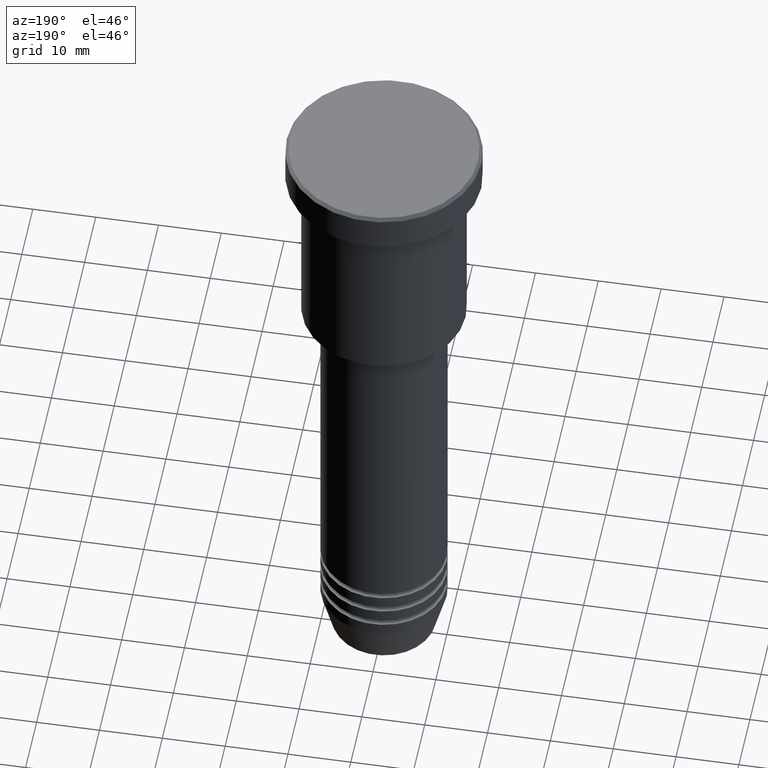
[diagram: clean part render]
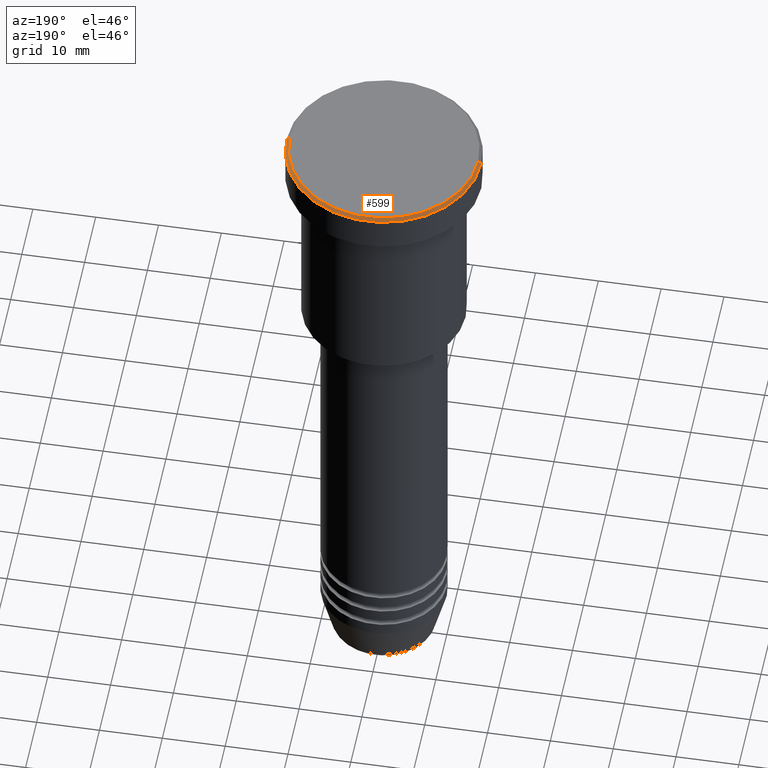
[diagram: same view with one face highlighted and labeled with its STEP entity id]
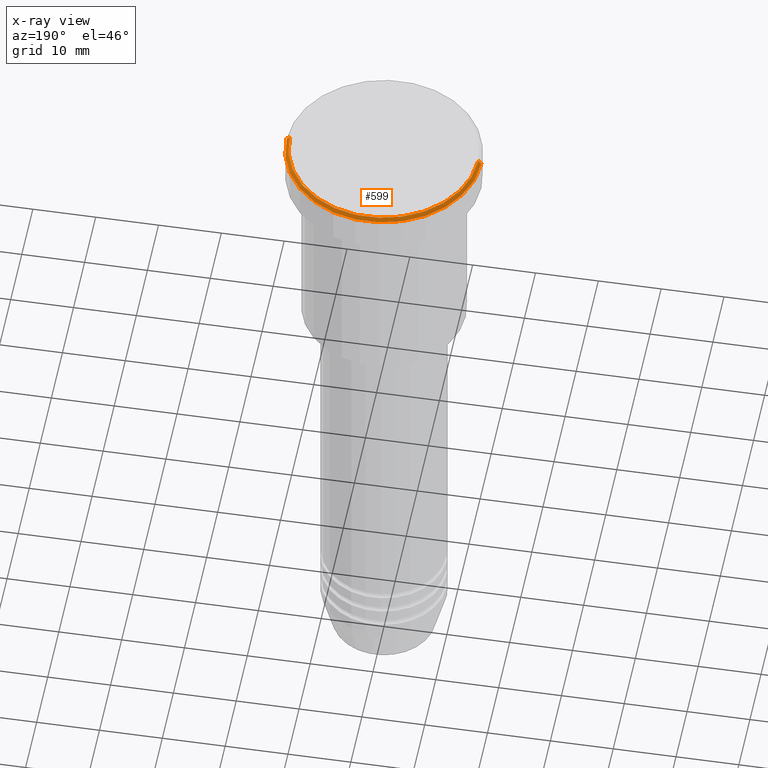
[diagram: x-ray of the same camera — body ghosted, the highlighted face saturated]
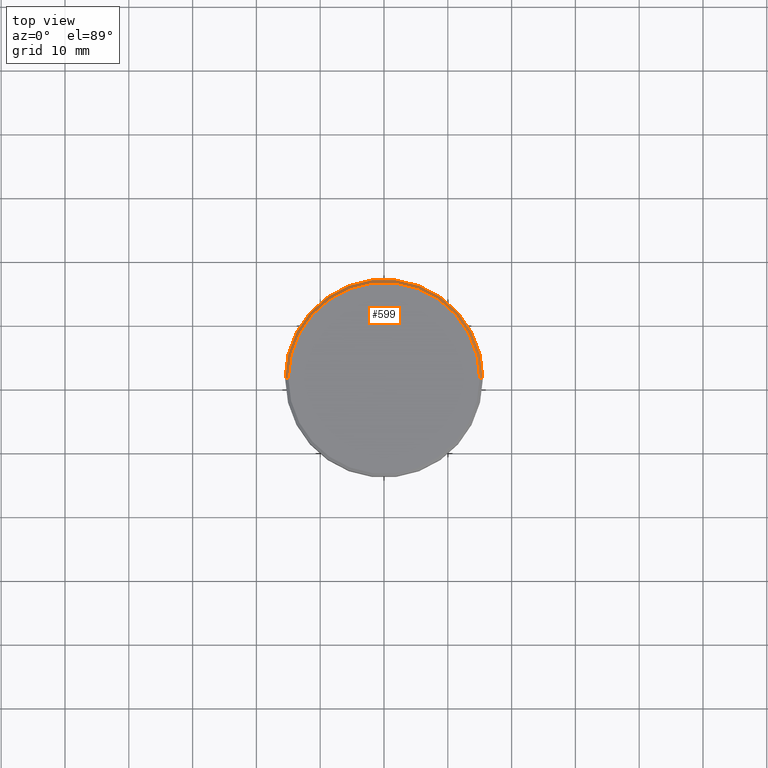
[diagram: same view with one face highlighted and labeled with its STEP entity id]
A machine part, auxiliary view. The second image highlights one B-rep face of the part: STEP entity #599.
The next image is the same camera in x-ray: the body ghosted, the highlighted face saturated — about 0% of this face is hidden behind the body in this view.
A second angle (top view) of the same face is appended — the face is thin or edge-on in the first view.
In plain terms, the highlighted conical surface has half-angle 45 deg.
Its self-contained STEP definition (entity closure, byte-faithful):
#14 = CARTESIAN_POINT ( 'NONE',  ( -15.00000000000000000, 0.000000000000000000, 0.000000000000000000 ) ) ;
#67 = AXIS2_PLACEMENT_3D ( 'NONE', #78, #363, #1008 ) ;
#68 = VERTEX_POINT ( 'NONE', #308 ) ;
#70 = EDGE_LOOP ( 'NONE', ( #425, #884, #898, #730 ) ) ;
#72 = CARTESIAN_POINT ( 'NONE',  ( -15.00000000000000000, 0.000000000000000000, 0.000000000000000000 ) ) ;
#78 = CARTESIAN_POINT ( 'NONE',  ( 0.000000000000000000, 0.000000000000000000, -0.4999999999999987232 ) ) ;
#138 = AXIS2_PLACEMENT_3D ( 'NONE', #1134, #438, #430 ) ;
#141 = CIRCLE ( 'NONE', #278, 15.00000000000000000 ) ;
#278 = AXIS2_PLACEMENT_3D ( 'NONE', #939, #307, #848 ) ;
#307 = DIRECTION ( 'NONE',  ( -0.000000000000000000, -0.000000000000000000, 1.000000000000000000 ) ) ;
#308 = CARTESIAN_POINT ( 'NONE',  ( 15.50000000000000000, 0.000000000000000000, -0.4999999999999987232 ) ) ;
#345 = EDGE_CURVE ( 'NONE', #454, #930, #737, .T. ) ;
#363 = DIRECTION ( 'NONE',  ( 0.000000000000000000, 0.000000000000000000, -1.000000000000000000 ) ) ;
#420 = EDGE_CURVE ( 'NONE', #709, #68, #468, .T. ) ;
#425 = ORIENTED_EDGE ( 'NONE', *, *, #450, .F. ) ;
#430 = DIRECTION ( 'NONE',  ( -1.000000000000000000, 0.000000000000000000, 0.000000000000000000 ) ) ;
#438 = DIRECTION ( 'NONE',  ( 0.000000000000000000, 0.000000000000000000, -1.000000000000000000 ) ) ;
#450 = EDGE_CURVE ( 'NONE', #709, #454, #141, .T. ) ;
#454 = VERTEX_POINT ( 'NONE', #14 ) ;
#468 = LINE ( 'NONE', #915, #813 ) ;
#587 = VECTOR ( 'NONE', #758, 1000.000000000000000 ) ;
#599 = ADVANCED_FACE ( 'NONE', ( #1049 ), #1042, .T. ) ;
#709 = VERTEX_POINT ( 'NONE', #789 ) ;
#730 = ORIENTED_EDGE ( 'NONE', *, *, #345, .F. ) ;
#737 = LINE ( 'NONE', #72, #587 ) ;
#758 = DIRECTION ( 'NONE',  ( -0.7071067811865487940, 0.000000000000000000, -0.7071067811865463515 ) ) ;
#789 = CARTESIAN_POINT ( 'NONE',  ( 15.00000000000000000, 1.867586368699713376E-15, 0.000000000000000000 ) ) ;
#813 = VECTOR ( 'NONE', #1180, 1000.000000000000000 ) ;
#848 = DIRECTION ( 'NONE',  ( 1.000000000000000000, 0.000000000000000000, 0.000000000000000000 ) ) ;
#852 = CARTESIAN_POINT ( 'NONE',  ( -15.50000000000000000, 1.898202538678397557E-15, -0.4999999999999987232 ) ) ;
#860 = EDGE_CURVE ( 'NONE', #930, #68, #952, .T. ) ;
#884 = ORIENTED_EDGE ( 'NONE', *, *, #420, .T. ) ;
#898 = ORIENTED_EDGE ( 'NONE', *, *, #860, .F. ) ;
#915 = CARTESIAN_POINT ( 'NONE',  ( 15.00000000000000000, 1.836970198721029589E-15, 0.000000000000000000 ) ) ;
#930 = VERTEX_POINT ( 'NONE', #852 ) ;
#939 = CARTESIAN_POINT ( 'NONE',  ( 0.000000000000000000, 0.000000000000000000, 0.000000000000000000 ) ) ;
#952 = CIRCLE ( 'NONE', #67, 15.50000000000000000 ) ;
#1008 = DIRECTION ( 'NONE',  ( 1.000000000000000000, 0.000000000000000000, 0.000000000000000000 ) ) ;
#1042 = CONICAL_SURFACE ( 'NONE', #138, 15.00000000000000000, 0.7853981633974500554 ) ;
#1049 = FACE_OUTER_BOUND ( 'NONE', #70, .T. ) ;
#1134 = CARTESIAN_POINT ( 'NONE',  ( 0.000000000000000000, 0.000000000000000000, 0.000000000000000000 ) ) ;
#1180 = DIRECTION ( 'NONE',  ( 0.7071067811865487940, 8.659560562354950115E-17, -0.7071067811865463515 ) ) ;